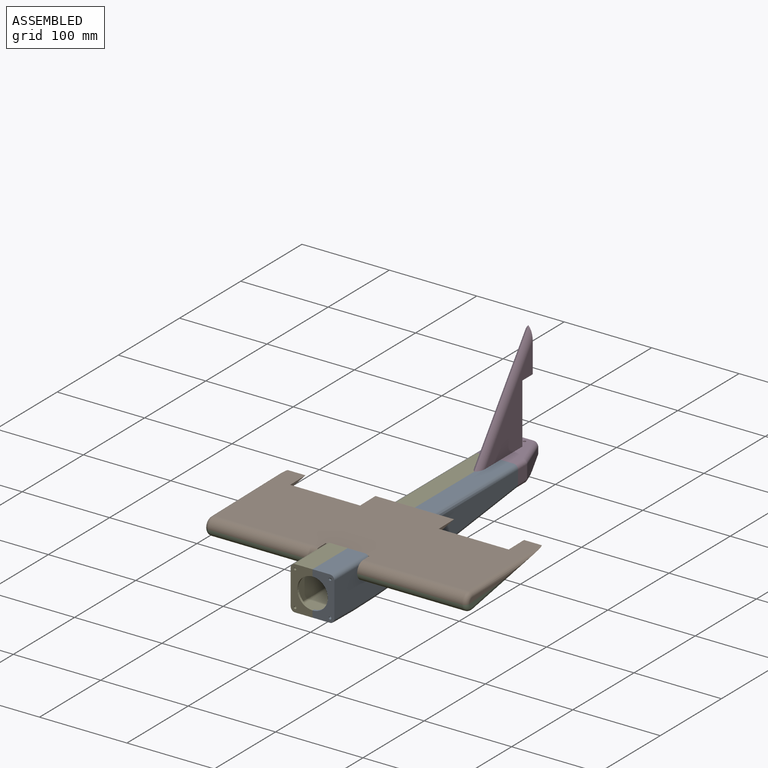
[diagram: assembled view]
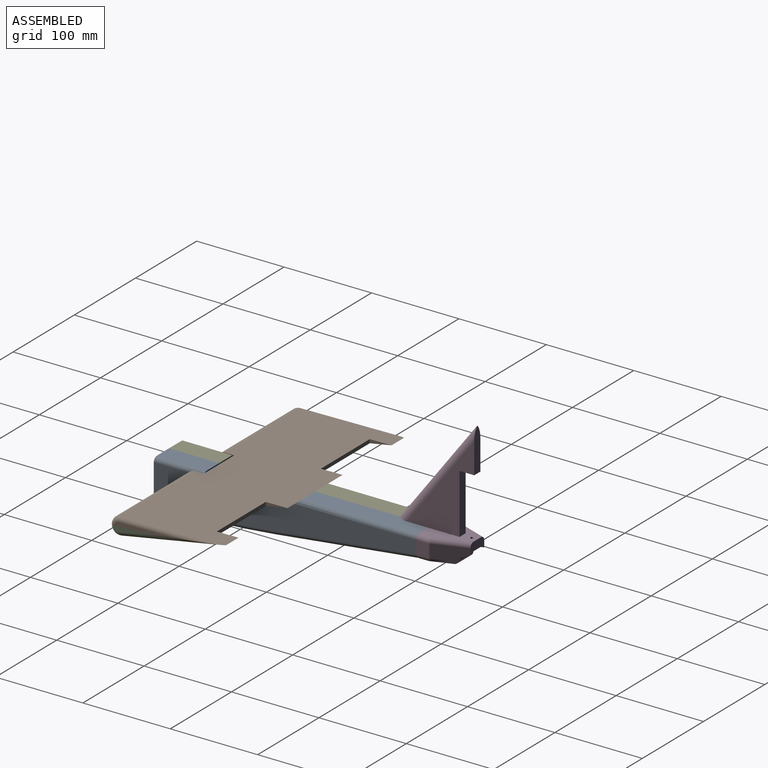
[diagram: assembled view, second angle]
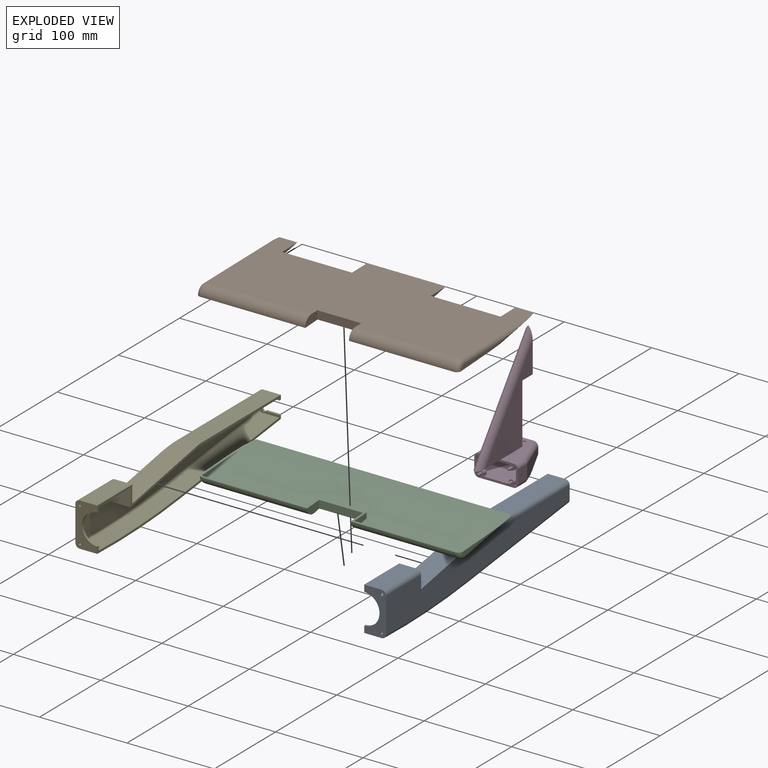
[diagram: exploded view]
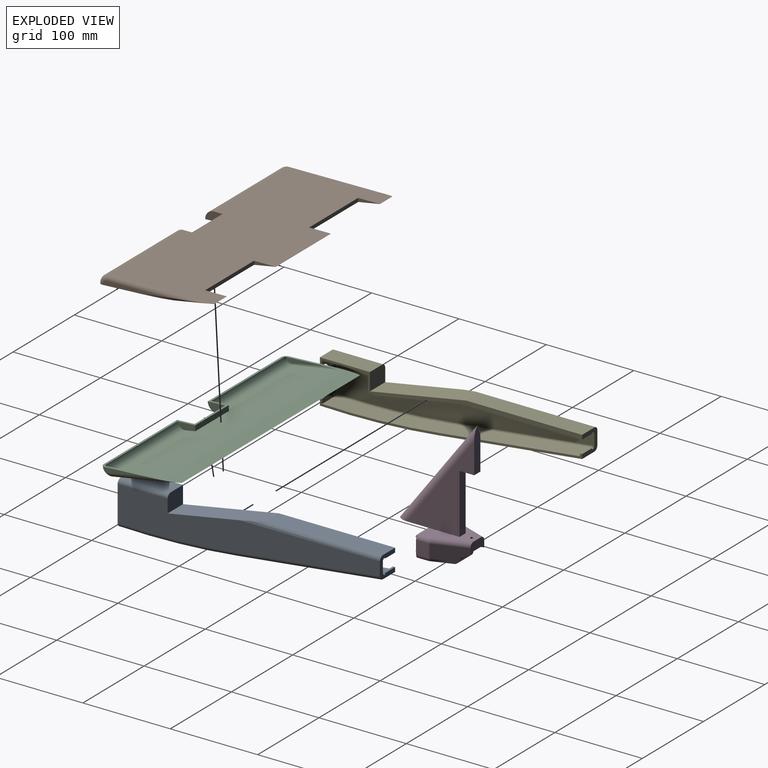
[diagram: exploded view, second angle]
ASSEMBLY  parts=5 mates=4
PART A: 38 faces, bbox 25x300.9x53.1 mm
  f0: plane 2.5x1mm, normal (0,0,1), area 2.5mm2, adj f5,f6,f33,f35
  f1: plane 16x2.5mm, normal (0,0,1), area 40mm2, adj f4,f5,f6,f35
  f2: plane 2.5x1mm, normal (0,0,-1), area 2.5mm2, adj f5,f6,f33,f34
  f3: plane 16x2.5mm, normal (0,0,-1), area 40mm2, adj f5,f6,f9,f34
  f4: plane 300x30.52mm, normal (-1,0,0), area 772.6mm2, adj f1,f5,f6,f7,f8,f17,f18,f28
  f5: plane 25x25mm, normal (0,1,0), area 307.2mm2, adj f0,f1,f2,f3,f4,f9,f12,f13
  f6: plane 22.5x20.28mm, normal (0,-1,0), area 146.5mm2, adj f0,f1,f2,f3,f4,f9,f23,f24
  f7: plane 50x25mm, normal (0,-1,0), area 744.1mm2, adj f4,f9,f10,f11,f14,f18,f19,f32
  f8: plane 45.11x22.53mm, normal (0,1,0), area 516.4mm2, adj f4,f9,f21,f22,f25,f29,f30,f32
  f9: plane 300x22.92mm, normal (-1,0,0), area 823.7mm2, adj f3,f5,f6,f7,f8,f15,f16,f19
  f10: cylinder r=5mm len=57.26mm, axis (0,1,0), area 449.8mm2, adj f7,f14,f19,f20
  f11: torus R=898.4mm, axis (1,0,0), area 1071.8mm2, adj f7,f12,f14,f18
  f12: cylinder r=5mm len=164.74mm, axis (0,-0.99,-0.12), area 1295.3mm2, adj f5,f11,f14,f17
  f13: cylinder r=5mm len=160.33mm, axis (0,1,0), area 1121.3mm2, adj f5,f14,f15,f16
  f14: plane 300x40.52mm, normal (1,0,0), area 8713mm2, adj f5,f7,f10,f11,f12,f13,f15,f20
  f15: plane 110x25mm, normal (0,-0.18,0.98), area 2764.7mm2, adj f9,f13,f14,f16,f20
  f16: plane 132.74x20mm, normal (0,0,1), area 2654.7mm2, adj f5,f9,f13,f15
  f17: plane 163.57x20mm, normal (0,0.12,-0.99), area 3294mm2, adj f4,f5,f12,f18
  f18: cylinder r=903.4mm len=136.43mm, axis (-1,0,0), area 2733.6mm2, adj f4,f7,f11,f17
  f19: plane 57.26x20mm, normal (0,0,1), area 1145.3mm2, adj f7,f9,f10,f20
  f20: plane 25x19.93mm, normal (0,1,0), area 492.9mm2, adj f9,f10,f14,f15,f19
  f21: cylinder r=2.5mm len=52.26mm, axis (0,1,0), area 205.2mm2, adj f8,f25,f30,f31
  f22: torus R=898.4mm, axis (1,0,0), area 525.4mm2, adj f8,f23,f25,f29
  f23: cylinder r=2.5mm len=161.95mm, axis (0,-0.99,-0.12), area 638.5mm2, adj f6,f22,f25,f28
  f24: cylinder r=2.5mm len=143.81mm, axis (0,1,0), area 530.2mm2, adj f6,f25,f26,f27
  f25: plane 295x40.52mm, normal (-1,0,0), area 8303.7mm2, adj f6,f8,f21,f22,f23,f24,f26,f31
  f26: plane 112.72x22.5mm, normal (0,0.18,-0.98), area 2570.1mm2, adj f9,f24,f25,f27,f31
  f27: plane 130.01x20mm, normal (0,0,-1), area 2600.2mm2, adj f6,f9,f24,f26
  f28: plane 161.36x20mm, normal (0,-0.12,0.99), area 3249.6mm2, adj f4,f6,f23,f29
  f29: cylinder r=900.9mm len=133.64mm, axis (-1,0,0), area 2677.7mm2, adj f4,f8,f22,f28
  f30: plane 52.26x20mm, normal (0,0,-1), area 1045.3mm2, adj f8,f9,f21,f31
  f31: plane 22.5x20.42mm, normal (0,-1,0), area 458.2mm2, adj f9,f21,f25,f26,f30
  f32: cylinder r=17.5mm len=35mm, axis (0,-1,0), area 137.4mm2, adj f4,f7,f8,f9
  f33: plane 15x2.5mm, normal (-1,0,0), area 37.5mm2, adj f0,f2,f5,f6
  f34: cylinder r=1.5mm len=3mm, axis (0,1,0), area 11.8mm2, adj f2,f3,f5,f6
  f35: cylinder r=1.5mm len=3mm, axis (0,1,0), area 11.8mm2, adj f0,f1,f5,f6
  f36: cylinder r=1.5mm len=3mm, axis (0,-1,0), area 23.6mm2, adj f7,f8
  f37: cylinder r=1.5mm len=3mm, axis (0,-1,0), area 23.6mm2, adj f7,f8
PART B: 37 faces, bbox 300x131.1x15.8 mm
  f0: cylinder r=10mm len=120mm, axis (-1,0,0), area 1934.1mm2, adj f2,f10,f19,f21
  f1: plane 290x40.3mm, normal (0,0.12,-0.99), area 7723mm2, adj f2,f8,f11,f12,f13,f14,f15,f16
  f2: plane 290x119.9mm, normal (0,0.04,1), area 30300mm2, adj f0,f1,f3,f6,f9,f12,f13,f14
  f3: cylinder r=10mm len=120mm, axis (-1,0,0), area 1934.1mm2, adj f2,f7,f18,f21
  f4: plane 65.15x5mm, normal (1,0,0), area 220.9mm2, adj f9,f10,f11,f21
  f5: plane 65.15x5mm, normal (-1,0,0), area 220.9mm2, adj f6,f7,f8,f21
  f6: cylinder r=5mm len=120.1mm, axis (0,-1,0.04), area 771.2mm2, adj f2,f5,f7,f8
  f7: torus R=5mm, axis (1,0,0), area 103.6mm2, adj f3,f5,f6,f21
  f8: cylinder r=5mm len=80.3mm, axis (0,0.99,0.12), area 261mm2, adj f1,f5,f6,f21
  f9: cylinder r=5mm len=120.1mm, axis (0,1,-0.04), area 771.2mm2, adj f2,f4,f10,f11
  f10: torus R=5mm, axis (1,0,0), area 103.6mm2, adj f0,f4,f9,f21
  f11: cylinder r=5mm len=80.3mm, axis (0,-0.99,-0.12), area 261mm2, adj f1,f4,f9,f21
  f12: plane 25.15x4.19mm, normal (-1,0,0), area 52.4mm2, adj f1,f2,f14
  f13: plane 25.15x4.19mm, normal (1,0,0), area 52.4mm2, adj f1,f2,f14
  f14: plane 80x4.19mm, normal (0,1,-0.04), area 335.7mm2, adj f1,f2,f12,f13
  f15: plane 25.15x4.19mm, normal (-1,0,0), area 52.4mm2, adj f1,f2,f17
  f16: plane 25.15x4.19mm, normal (1,0,0), area 52.4mm2, adj f1,f2,f17
  f17: plane 80x4.19mm, normal (0,1,-0.04), area 335.7mm2, adj f1,f2,f15,f16
  f18: plane 20.4x10mm, normal (1,0,0), area 178.5mm2, adj f2,f3,f20,f21
  f19: plane 20.4x10mm, normal (-1,0,0), area 178.5mm2, adj f0,f2,f20,f21
  f20: plane 50x9.58mm, normal (0,-1,0.04), area 479.5mm2, adj f2,f18,f19,f21
  f21: plane 300x90.01mm, normal (0,0,-1), area 7116mm2, adj f0,f1,f3,f4,f5,f7,f8,f10
  f22: plane 290x30.22mm, normal (0,-0.12,0.99), area 8834.2mm2, adj f21,f24,f30,f33
  f23: cylinder r=7.5mm len=117.5mm, axis (-1,0,0), area 1420.4mm2, adj f21,f24,f32,f35
  f24: plane 290x89.92mm, normal (0,-0.04,-1), area 25412.5mm2, adj f22,f23,f25,f28,f31,f34,f35,f36
  f25: cylinder r=7.5mm len=117.5mm, axis (-1,0,0), area 1420.4mm2, adj f21,f24,f29,f34
  f26: plane 65.15x5mm, normal (-1,0,0), area 220.9mm2, adj f21,f31,f32,f33
  f27: plane 65.15x5mm, normal (1,0,0), area 220.9mm2, adj f21,f28,f29,f30
  f28: cylinder r=2.5mm len=90.03mm, axis (0,-1,0.04), area 310.6mm2, adj f24,f27,f29,f30
  f29: torus R=5mm, axis (1,0,0), area 41.7mm2, adj f21,f25,f27,f28
  f30: cylinder r=2.5mm len=50.23mm, axis (0,0.99,0.12), area 105.1mm2, adj f21,f22,f27,f28
  f31: cylinder r=2.5mm len=90.03mm, axis (0,1,-0.04), area 310.6mm2, adj f24,f26,f32,f33
  f32: torus R=5mm, axis (1,0,0), area 41.7mm2, adj f21,f23,f26,f31
  f33: cylinder r=2.5mm len=50.23mm, axis (0,-0.99,-0.12), area 105.1mm2, adj f21,f22,f26,f31
  f34: plane 20.3x7.5mm, normal (-1,0,0), area 135.9mm2, adj f21,f24,f25,f36
  f35: plane 20.3x7.5mm, normal (1,0,0), area 135.9mm2, adj f21,f23,f24,f36
  f36: plane 55x6.98mm, normal (0,1,-0.04), area 384.3mm2, adj f21,f24,f34,f35
PART C: 25 faces, bbox 300x90.8x15.8 mm
  f0: plane 300x90.01mm, normal (0,0,1), area 7116mm2, adj f1,f2,f3,f4,f5,f6,f7,f8
  f1: cylinder r=5mm len=79.39mm, axis (0,-0.99,-0.12), area 510.2mm2, adj f0,f2,f3,f11
  f2: torus R=5mm, axis (1,0,0), area 109mm2, adj f0,f1,f3,f12
  f3: plane 45.01x5mm, normal (1,0,0), area 120.4mm2, adj f0,f1,f2
  f4: plane 50x8.86mm, normal (0,-1,0.04), area 443.6mm2, adj f0,f5,f6,f11
  f5: plane 20.01x10mm, normal (-1,0,0), area 171.5mm2, adj f0,f4,f11,f12
  f6: plane 20.01x10mm, normal (1,0,0), area 171.5mm2, adj f0,f4,f10,f11
  f7: cylinder r=5mm len=79.39mm, axis (0,0.99,0.12), area 510.2mm2, adj f0,f8,f9,f11
  f8: torus R=5mm, axis (1,0,0), area 109mm2, adj f0,f7,f9,f10
  f9: plane 45.01x5mm, normal (-1,0,0), area 120.4mm2, adj f0,f7,f8
  f10: cylinder r=10mm len=120mm, axis (-1,0,0), area 2035.3mm2, adj f0,f6,f8,f11
  f11: plane 290x78.76mm, normal (0,0.12,-0.99), area 22598mm2, adj f0,f1,f4,f5,f6,f7,f10,f12
  f12: cylinder r=10mm len=120mm, axis (-1,0,0), area 2035.3mm2, adj f0,f2,f5,f11
  f13: cylinder r=2.5mm len=59.38mm, axis (0,-0.99,-0.12), area 205.5mm2, adj f0,f14,f15,f23
  f14: torus R=5mm, axis (1,0,0), area 43.9mm2, adj f0,f13,f15,f24
  f15: plane 45.01x5mm, normal (-1,0,0), area 120.4mm2, adj f0,f13,f14
  f16: plane 55x6.01mm, normal (0,1,-0.04), area 331.1mm2, adj f0,f17,f18,f23
  f17: plane 20.01x7.5mm, normal (1,0,0), area 128.1mm2, adj f0,f16,f23,f24
  f18: plane 20.01x7.5mm, normal (-1,0,0), area 128.1mm2, adj f0,f16,f22,f23
  f19: cylinder r=2.5mm len=59.38mm, axis (0,0.99,0.12), area 205.5mm2, adj f0,f20,f21,f23
  f20: torus R=5mm, axis (1,0,0), area 43.9mm2, adj f0,f19,f21,f22
  f21: plane 45.01x5mm, normal (1,0,0), area 120.4mm2, adj f0,f19,f20
  f22: cylinder r=7.5mm len=117.5mm, axis (-1,0,0), area 1494.7mm2, adj f0,f18,f20,f23
  f23: plane 290x59.07mm, normal (0,-0.12,0.99), area 16637.9mm2, adj f0,f13,f16,f17,f18,f19,f22,f24
  f24: cylinder r=7.5mm len=117.5mm, axis (-1,0,0), area 1494.7mm2, adj f0,f14,f17,f23
PART D: 83 faces, bbox 50x95.3x142.8 mm
  f0: cylinder r=5mm len=15.62mm, axis (-0.34,0.94,0), area 35.1mm2, adj f7,f18,f77
  f1: cylinder r=5mm len=21.69mm, axis (-0.34,0.94,0), area 16.4mm2, adj f2,f3,f8,f71
  f2: plane 32.74x12.45mm, normal (0.94,0.34,0), area 228mm2, adj f1,f3,f17,f18,f71,f76
  f3: sphere r=5mm, area 0.1mm2, adj f1,f2,f76
  f4: plane 50.09x45mm, normal (0,0,-1), area 1727.4mm2, adj f6,f19,f21,f22,f23,f24,f38,f40
  f5: plane 22.64x12.5mm, normal (0,1,0), area 185.2mm2, adj f7,f9,f13,f14,f18,f70,f72,f74
  f6: plane 50x25mm, normal (0,-1,0), area 416.8mm2, adj f4,f8,f10,f11,f13,f20,f22,f23
  f7: plane 36.76x15mm, normal (0.94,0.34,0), area 500.2mm2, adj f0,f5,f18,f72,f73
  f8: plane 40x35.09mm, normal (0,0,-1), area 1258.8mm2, adj f1,f6,f15,f71,f76,f82
  f9: plane 36.76x18.6mm, normal (-0.94,0.34,0), area 527.6mm2, adj f5,f14,f74,f75,f82
  f10: plane 15x14.12mm, normal (-1,0,0), area 211.8mm2, adj f6,f75,f78,f82
  f11: plane 15x14.12mm, normal (1,0,0), area 211.8mm2, adj f6,f73,f76,f80
  f12: plane 49.49x10mm, normal (0,1,0), area 452.9mm2, adj f32,f33,f34,f35,f36
  f13: plane 52.59x40mm, normal (0,0,1), area 1200.5mm2, adj f5,f6,f32,f33,f37,f69,f72,f74
  f14: plane 45.88x17.62mm, normal (0.67,0,-0.74), area 213.7mm2, adj f5,f9,f15,f16,f70,f82
  f15: plane 33.38x12.5mm, normal (-0.94,0.34,0), area 236.7mm2, adj f8,f14,f17,f71,f82
  f16: plane 22.64x7.5mm, normal (0,0,-1), area 163mm2, adj f14,f17,f18,f68,f70
  f17: plane 22.64x7.5mm, normal (0,1,0), area 169.8mm2, adj f2,f15,f16,f71
  f18: plane 45.24x17.18mm, normal (-0.69,0,-0.73), area 204.4mm2, adj f0,f2,f5,f7,f16,f70,f76,f77
  f19: plane 35.53x17.17mm, normal (-0.94,-0.34,0), area 427.5mm2, adj f4,f23,f24,f27,f29
  f20: plane 45x37.59mm, normal (0,0,1), area 1172.1mm2, adj f6,f22,f23,f26,f28,f30,f42,f43
  f21: plane 35.53x16.83mm, normal (0.94,-0.34,0), area 422.8mm2, adj f4,f22,f24,f25,f27
  f22: plane 20x14.56mm, normal (1,0,0), area 251.6mm2, adj f4,f6,f20,f21,f25,f26
  f23: plane 20x14.56mm, normal (-1,0,0), area 255.8mm2, adj f4,f6,f19,f20,f29,f30
  f24: plane 19.14x7.5mm, normal (0,-1,0), area 143.5mm2, adj f4,f19,f21,f27
  f25: plane 40.55x10.21mm, normal (-0.67,0,0.74), area 172.9mm2, adj f21,f22,f26,f27
  f26: plane 35.53x12.93mm, normal (0.94,-0.34,0), area 333.3mm2, adj f20,f22,f25,f27,f28
  f27: plane 24.61x20.05mm, normal (0,0,1), area 300.5mm2, adj f19,f21,f24,f25,f26,f28,f29,f30
  f28: plane 19.14x12.5mm, normal (0,-1,0), area 239.2mm2, adj f20,f26,f27,f30
  f29: plane 40.48x10.18mm, normal (0.69,0,0.73), area 175.5mm2, adj f19,f23,f27,f30
  f30: plane 35.53x12.93mm, normal (-0.94,-0.34,0), area 328.7mm2, adj f20,f23,f27,f28,f29
  f31: plane 35.74x10mm, normal (0,0,-1), area 325.9mm2, adj f6,f32,f33,f34,f35
  f32: plane 103.33x77.5mm, normal (1,0,0), area 2853.4mm2, adj f12,f13,f31,f34,f36,f37
  f33: plane 103.33x77.5mm, normal (-1,0,0), area 2853.4mm2, adj f12,f13,f31,f35,f36,f37
  f34: cylinder r=10mm len=122.96mm, axis (0,0.6,0.8), area 1456.8mm2, adj f12,f31,f32,f35
  f35: cylinder r=10mm len=122.96mm, axis (0,-0.6,-0.8), area 1456.8mm2, adj f12,f31,f33,f34
  f36: plane 16.85x10mm, normal (0,0,-1), area 161.5mm2, adj f12,f32,f33,f37,f67
  f37: plane 68.28x10mm, normal (0,1,0), area 682.8mm2, adj f13,f32,f33,f36
  f38: plane 5x2.5mm, normal (-1,0,0), area 12.5mm2, adj f4,f6,f39,f41
  f39: cylinder r=3mm len=6mm, axis (0,-1,0), area 47.1mm2, adj f6,f38,f40,f41
  f40: plane 5x2.5mm, normal (1,0,0), area 12.5mm2, adj f4,f6,f39,f41
  f41: plane 6x5.5mm, normal (0,1,0), area 29.1mm2, adj f4,f38,f39,f40
  f42: plane 5x2.5mm, normal (-1,0,0), area 12.5mm2, adj f6,f20,f44,f45
  f43: plane 5x2.49mm, normal (1,0,0), area 12.4mm2, adj f6,f20,f44,f45
  f44: cylinder r=3mm len=6mm, axis (0,-1,0), area 47.2mm2, adj f6,f42,f43,f45
  f45: plane 6x5.5mm, normal (0,1,0), area 29.1mm2, adj f20,f42,f43,f44
  f46: cylinder r=3mm len=6mm, axis (0,-1,0), area 47.1mm2, adj f6,f47,f48,f49
  f47: plane 5x2.5mm, normal (1,0,0), area 12.5mm2, adj f4,f6,f46,f49
  f48: plane 5x2.5mm, normal (-1,0,0), area 12.5mm2, adj f4,f6,f46,f49
  f49: plane 6x5.5mm, normal (0,1,0), area 29.1mm2, adj f4,f46,f47,f48
  f50: plane 5x2.5mm, normal (1,0,0), area 12.5mm2, adj f6,f20,f51,f53
  f51: cylinder r=3mm len=6mm, axis (0,-1,0), area 47.2mm2, adj f6,f50,f52,f53
  f52: plane 5x2.49mm, normal (-1,0,0), area 12.4mm2, adj f6,f20,f51,f53
  f53: plane 6x5.5mm, normal (0,1,0), area 29.1mm2, adj f20,f50,f51,f52
  f54: cylinder r=1.5mm len=4mm, axis (0,1,0), area 37.7mm2, adj f6,f65
  f55: plane 1x1mm, normal (0,-1,0), area 0.8mm2, adj f65
  f56: cylinder r=1.5mm len=4mm, axis (0,1,0), area 37.7mm2, adj f6,f64
  f57: plane 1x1mm, normal (0,-1,0), area 0.8mm2, adj f64
  f58: cylinder r=1.5mm len=4mm, axis (0,1,0), area 37.7mm2, adj f6,f63
  f59: plane 1x1mm, normal (0,-1,0), area 0.8mm2, adj f63
  f60: cylinder r=1.5mm len=4mm, axis (0,1,0), area 37.7mm2, adj f6,f62
  f61: plane 1x1mm, normal (0,-1,0), area 0.8mm2, adj f62
  f62: torus R=0.5mm, axis (0,-1,0), area 11.2mm2, adj f60,f61
  f63: torus R=0.5mm, axis (0,-1,0), area 11.2mm2, adj f58,f59
  f64: torus R=0.5mm, axis (0,-1,0), area 11.2mm2, adj f56,f57
  f65: torus R=0.5mm, axis (0,-1,0), area 11.2mm2, adj f54,f55
  f66: plane 3x3mm, normal (0,0,-1), area 7.1mm2, adj f67
  f67: cylinder r=1.5mm len=19.22mm, axis (0,0,-1), area 181.2mm2, adj f36,f66
  f68: cylinder r=1.5mm len=3mm, axis (0,0,-1), area 23.6mm2, adj f16,f27,f70
  f69: cylinder r=1.5mm len=3mm, axis (0,0,-1), area 23.6mm2, adj f4,f13
  f70: cylinder r=5mm len=22.64mm, axis (-1,0,0), area 146.9mm2, adj f5,f14,f16,f18,f68
  f71: cylinder r=5mm len=26.01mm, axis (-1,0,0), area 187.9mm2, adj f1,f2,f8,f15,f17
  f72: cylinder r=5mm len=40.18mm, axis (0.34,-0.94,0), area 312.4mm2, adj f5,f7,f13,f81
  f73: cylinder r=5mm len=15mm, axis (0,0,1), area 26.2mm2, adj f7,f11,f77,f81
  f74: cylinder r=5mm len=40.18mm, axis (0.34,0.94,0), area 312.4mm2, adj f5,f9,f13,f79
  f75: cylinder r=5mm len=16.71mm, axis (0,0,-1), area 27.7mm2, adj f9,f10,f79,f82
  f76: cylinder r=5mm len=14.12mm, axis (0,1,0), area 101.2mm2, adj f2,f3,f6,f8,f11,f18,f77
  f77: sphere r=5mm, area 6.6mm2, adj f0,f18,f73,f76
  f78: cylinder r=5mm len=14.12mm, axis (0,1,0), area 110.9mm2, adj f6,f10,f13,f79
  f79: sphere r=5mm, area 8.7mm2, adj f74,f75,f78
  f80: cylinder r=5mm len=14.12mm, axis (0,-1,0), area 110.9mm2, adj f6,f11,f13,f81
  f81: sphere r=5mm, area 8.7mm2, adj f72,f73,f80
  f82: cylinder r=5mm len=19.21mm, axis (0,-1,0), area 108.6mm2, adj f6,f8,f9,f10,f14,f15,f75
PART E: 38 faces, bbox 25x300.9x53.1 mm
  f0: plane 16x2.5mm, normal (0,0,1), area 40mm2, adj f2,f3,f4,f35
  f1: plane 16x2.5mm, normal (0,0,-1), area 40mm2, adj f3,f4,f7,f34
  f2: plane 300x30.52mm, normal (1,0,0), area 772.6mm2, adj f0,f3,f4,f5,f6,f10,f11,f21
  f3: plane 25x25mm, normal (0,1,0), area 307.2mm2, adj f0,f1,f2,f7,f11,f12,f14,f16
  f4: plane 22.5x20.28mm, normal (0,-1,0), area 146.5mm2, adj f0,f1,f2,f7,f22,f23,f25,f27
  f5: plane 50x25mm, normal (0,-1,0), area 744.1mm2, adj f2,f7,f9,f10,f14,f15,f18,f30
  f6: plane 45.11x22.53mm, normal (0,1,0), area 516.4mm2, adj f2,f7,f20,f21,f25,f26,f29,f30
  f7: plane 300x22.92mm, normal (1,0,0), area 823.7mm2, adj f1,f3,f4,f5,f6,f8,f9,f12
  f8: plane 25x19.93mm, normal (0,1,0), area 492.9mm2, adj f7,f9,f13,f14,f18
  f9: plane 57.26x20mm, normal (0,0,1), area 1145.3mm2, adj f5,f7,f8,f18
  f10: cylinder r=903.4mm len=136.43mm, axis (-1,0,0), area 2733.6mm2, adj f2,f5,f11,f15
  f11: plane 163.57x20mm, normal (0,0.12,-0.99), area 3294mm2, adj f2,f3,f10,f16
  f12: plane 132.74x20mm, normal (0,0,1), area 2654.7mm2, adj f3,f7,f13,f17
  f13: plane 110x25mm, normal (0,-0.18,0.98), area 2764.7mm2, adj f7,f8,f12,f14,f17
  f14: plane 300x40.52mm, normal (-1,0,0), area 8713mm2, adj f3,f5,f8,f13,f15,f16,f17,f18
  f15: torus R=898.4mm, axis (1,0,0), area 1071.8mm2, adj f5,f10,f14,f16
  f16: cylinder r=5mm len=164.74mm, axis (0,0.99,0.12), area 1295.3mm2, adj f3,f11,f14,f15
  f17: cylinder r=5mm len=160.33mm, axis (0,-1,0), area 1121.3mm2, adj f3,f12,f13,f14
  f18: cylinder r=5mm len=57.26mm, axis (0,-1,0), area 449.8mm2, adj f5,f8,f9,f14
  f19: plane 22.5x20.42mm, normal (0,-1,0), area 458.2mm2, adj f7,f20,f24,f25,f29
  f20: plane 52.26x20mm, normal (0,0,-1), area 1045.3mm2, adj f6,f7,f19,f29
  f21: cylinder r=900.9mm len=133.64mm, axis (-1,0,0), area 2677.7mm2, adj f2,f6,f22,f26
  f22: plane 161.36x20mm, normal (0,-0.12,0.99), area 3249.6mm2, adj f2,f4,f21,f27
  f23: plane 130.01x20mm, normal (0,0,-1), area 2600.2mm2, adj f4,f7,f24,f28
  f24: plane 112.72x22.5mm, normal (0,0.18,-0.98), area 2570.1mm2, adj f7,f19,f23,f25,f28
  f25: plane 295x40.52mm, normal (1,0,0), area 8303.7mm2, adj f4,f6,f19,f24,f26,f27,f28,f29
  f26: torus R=898.4mm, axis (1,0,0), area 525.4mm2, adj f6,f21,f25,f27
  f27: cylinder r=2.5mm len=161.95mm, axis (0,0.99,0.12), area 638.5mm2, adj f4,f22,f25,f26
  f28: cylinder r=2.5mm len=143.81mm, axis (0,-1,0), area 530.2mm2, adj f4,f23,f24,f25
  f29: cylinder r=2.5mm len=52.26mm, axis (0,-1,0), area 205.2mm2, adj f6,f19,f20,f25
  f30: cylinder r=17.5mm len=35mm, axis (0,-1,0), area 137.4mm2, adj f2,f5,f6,f7
  f31: plane 2.5x1mm, normal (0,0,1), area 2.5mm2, adj f3,f4,f32,f35
  f32: plane 15x2.5mm, normal (1,0,0), area 37.5mm2, adj f3,f4,f31,f33
  f33: plane 2.5x1mm, normal (0,0,-1), area 2.5mm2, adj f3,f4,f32,f34
  f34: cylinder r=1.5mm len=3mm, axis (0,1,0), area 11.8mm2, adj f1,f3,f4,f33
  f35: cylinder r=1.5mm len=3mm, axis (0,1,0), area 11.8mm2, adj f0,f3,f4,f31
  f36: cylinder r=1.5mm len=3mm, axis (0,-1,0), area 23.6mm2, adj f5,f6
  f37: cylinder r=1.5mm len=3mm, axis (0,-1,0), area 23.6mm2, adj f5,f6
PLACE A t=(-7.23,13.46,3.12)mm
PLACE B rot(axis=(1,0,0),3.1deg) t=(-7.23,-64.01,-4.42)mm
PLACE C rot(axis=(1,0,0),3.1deg) t=(-7.23,-64.01,-4.42)mm
PLACE D t=(-7.23,121.05,-21.88)mm
PLACE E t=(-7.23,13.46,3.12)mm
MATE fastened C.f0 <-> B.f21  axis (0,-0.05,1) through (-32.23,-129.3,-7.95)mm
MATE fastened D.f6 <-> A.f5  axis (0,-1,0) through (12.77,113.55,3.12)mm
MATE fastened E.f7 <-> A.f9  axis (1,0,0) through (-7.23,-183.95,0.62)mm
MATE fastened C.f11 <-> A.f15  axis (0,0.18,-0.98) through (-7.23,-129.18,-16.82)mm
